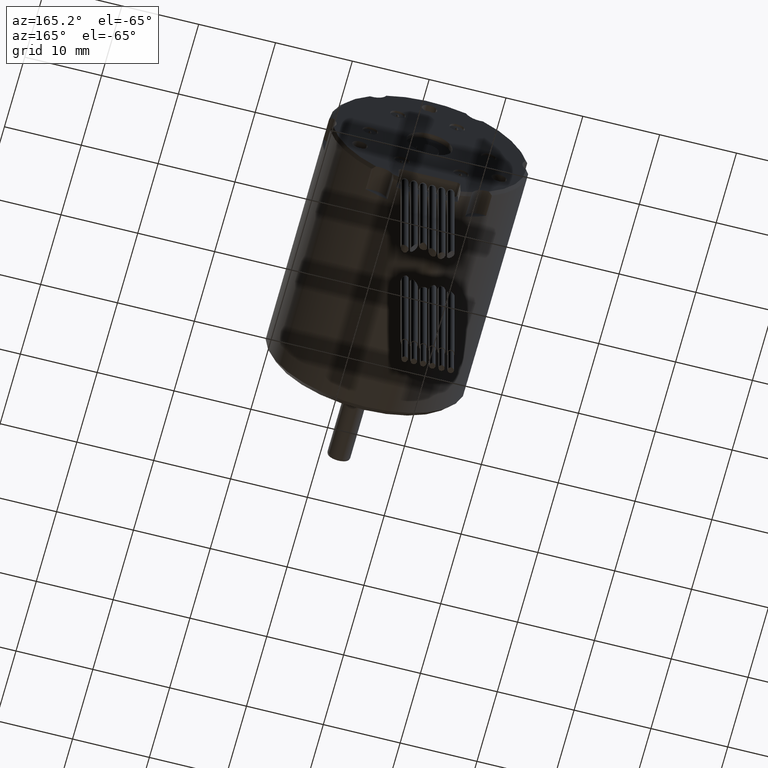
[diagram: clean part render]
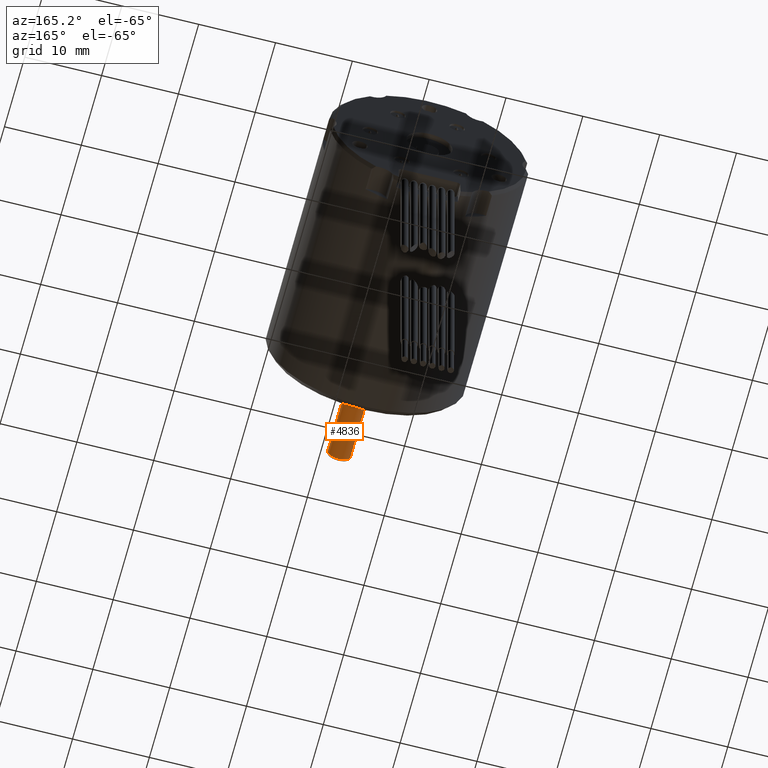
[diagram: same view with one face highlighted and labeled with its STEP entity id]
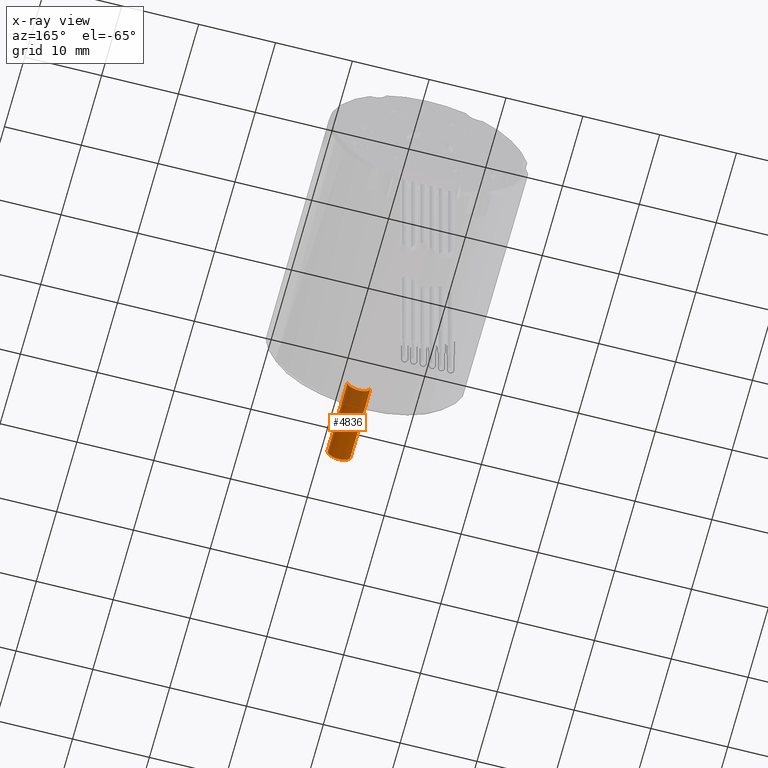
[diagram: x-ray of the same camera — body ghosted, the highlighted face saturated]
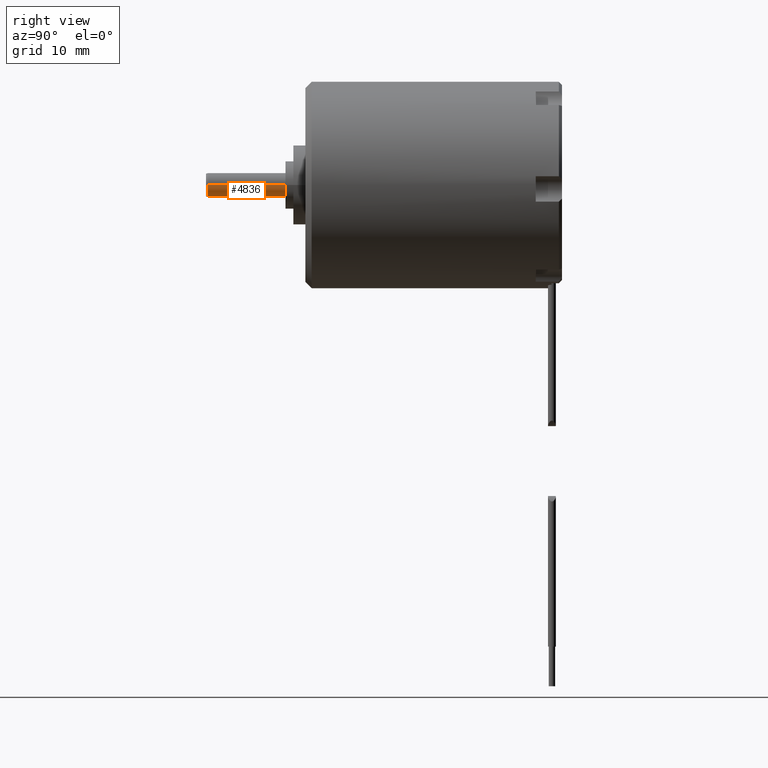
[diagram: same view with one face highlighted and labeled with its STEP entity id]
A machine part, auxiliary view. The second image highlights one B-rep face of the part: STEP entity #4836.
The next image is the same camera in x-ray: the body ghosted, the highlighted face saturated — about 25% of this face is hidden behind the body in this view.
A second angle (right view) of the same face is appended — the face is thin or edge-on in the first view.
In plain terms, the highlighted cylindrical surface (edge-blend (fillet) strip) has radius 1.5 mm, axis along (0, -1, 0).
Its self-contained STEP definition (entity closure, byte-faithful):
#1512=CARTESIAN_POINT('',(0.E0,-2.4E0,0.E0));
#1513=DIRECTION('',(0.E0,-1.E0,0.E0));
#1514=DIRECTION('',(-1.E0,0.E0,0.E0));
#1515=AXIS2_PLACEMENT_3D('',#1512,#1513,#1514);
#1517=DIRECTION('',(5.042779504744E-14,-1.E0,9.083453022419E-12));
#1518=VECTOR('',#1517,9.85E0);
#1519=CARTESIAN_POINT('',(-1.5E0,-2.4E0,0.E0));
#1520=LINE('',#1519,#1518);
#1521=CARTESIAN_POINT('',(0.E0,-1.225E1,0.E0));
#1522=DIRECTION('',(0.E0,-1.E0,0.E0));
#1523=DIRECTION('',(-1.E0,0.E0,0.E0));
#1524=AXIS2_PLACEMENT_3D('',#1521,#1522,#1523);
#1526=DIRECTION('',(5.042779504744E-14,1.E0,2.863102135978E-11));
#1527=VECTOR('',#1526,9.85E0);
#1528=CARTESIAN_POINT('',(1.5E0,-1.225E1,2.691974976265E-10));
#1529=LINE('',#1528,#1527);
#2595=CARTESIAN_POINT('',(-1.5E0,-1.225E1,0.E0));
#2596=CARTESIAN_POINT('',(1.5E0,-1.225E1,6.153069548769E-10));
#2597=VERTEX_POINT('',#2595);
#2598=VERTEX_POINT('',#2596);
#2955=CARTESIAN_POINT('',(1.5E0,-2.4E0,5.383938123554E-10));
#2956=CARTESIAN_POINT('',(-1.5E0,-2.4E0,0.E0));
#2957=VERTEX_POINT('',#2955);
#2958=VERTEX_POINT('',#2956);
#4822=CARTESIAN_POINT('',(0.E0,3.212E1,0.E0));
#4823=DIRECTION('',(0.E0,-1.E0,0.E0));
#4824=DIRECTION('',(-1.E0,0.E0,0.E0));
#4825=AXIS2_PLACEMENT_3D('',#4822,#4823,#4824);
#4826=CYLINDRICAL_SURFACE('',#4825,1.5E0);
#4827=ORIENTED_EDGE('',*,*,#4796,.F.);
#4829=ORIENTED_EDGE('',*,*,#4828,.T.);
#4831=ORIENTED_EDGE('',*,*,#4830,.T.);
#4833=ORIENTED_EDGE('',*,*,#4832,.T.);
#4834=EDGE_LOOP('',(#4827,#4829,#4831,#4833));
#4835=FACE_OUTER_BOUND('',#4834,.F.);
#4836=ADVANCED_FACE('',(#4835),#4826,.T.);
#1516=CIRCLE('',#1515,1.5E0);
#1525=CIRCLE('',#1524,1.5E0);
#4796=EDGE_CURVE('',#2958,#2957,#1516,.T.);
#4828=EDGE_CURVE('',#2958,#2597,#1520,.T.);
#4830=EDGE_CURVE('',#2597,#2598,#1525,.T.);
#4832=EDGE_CURVE('',#2598,#2957,#1529,.T.);